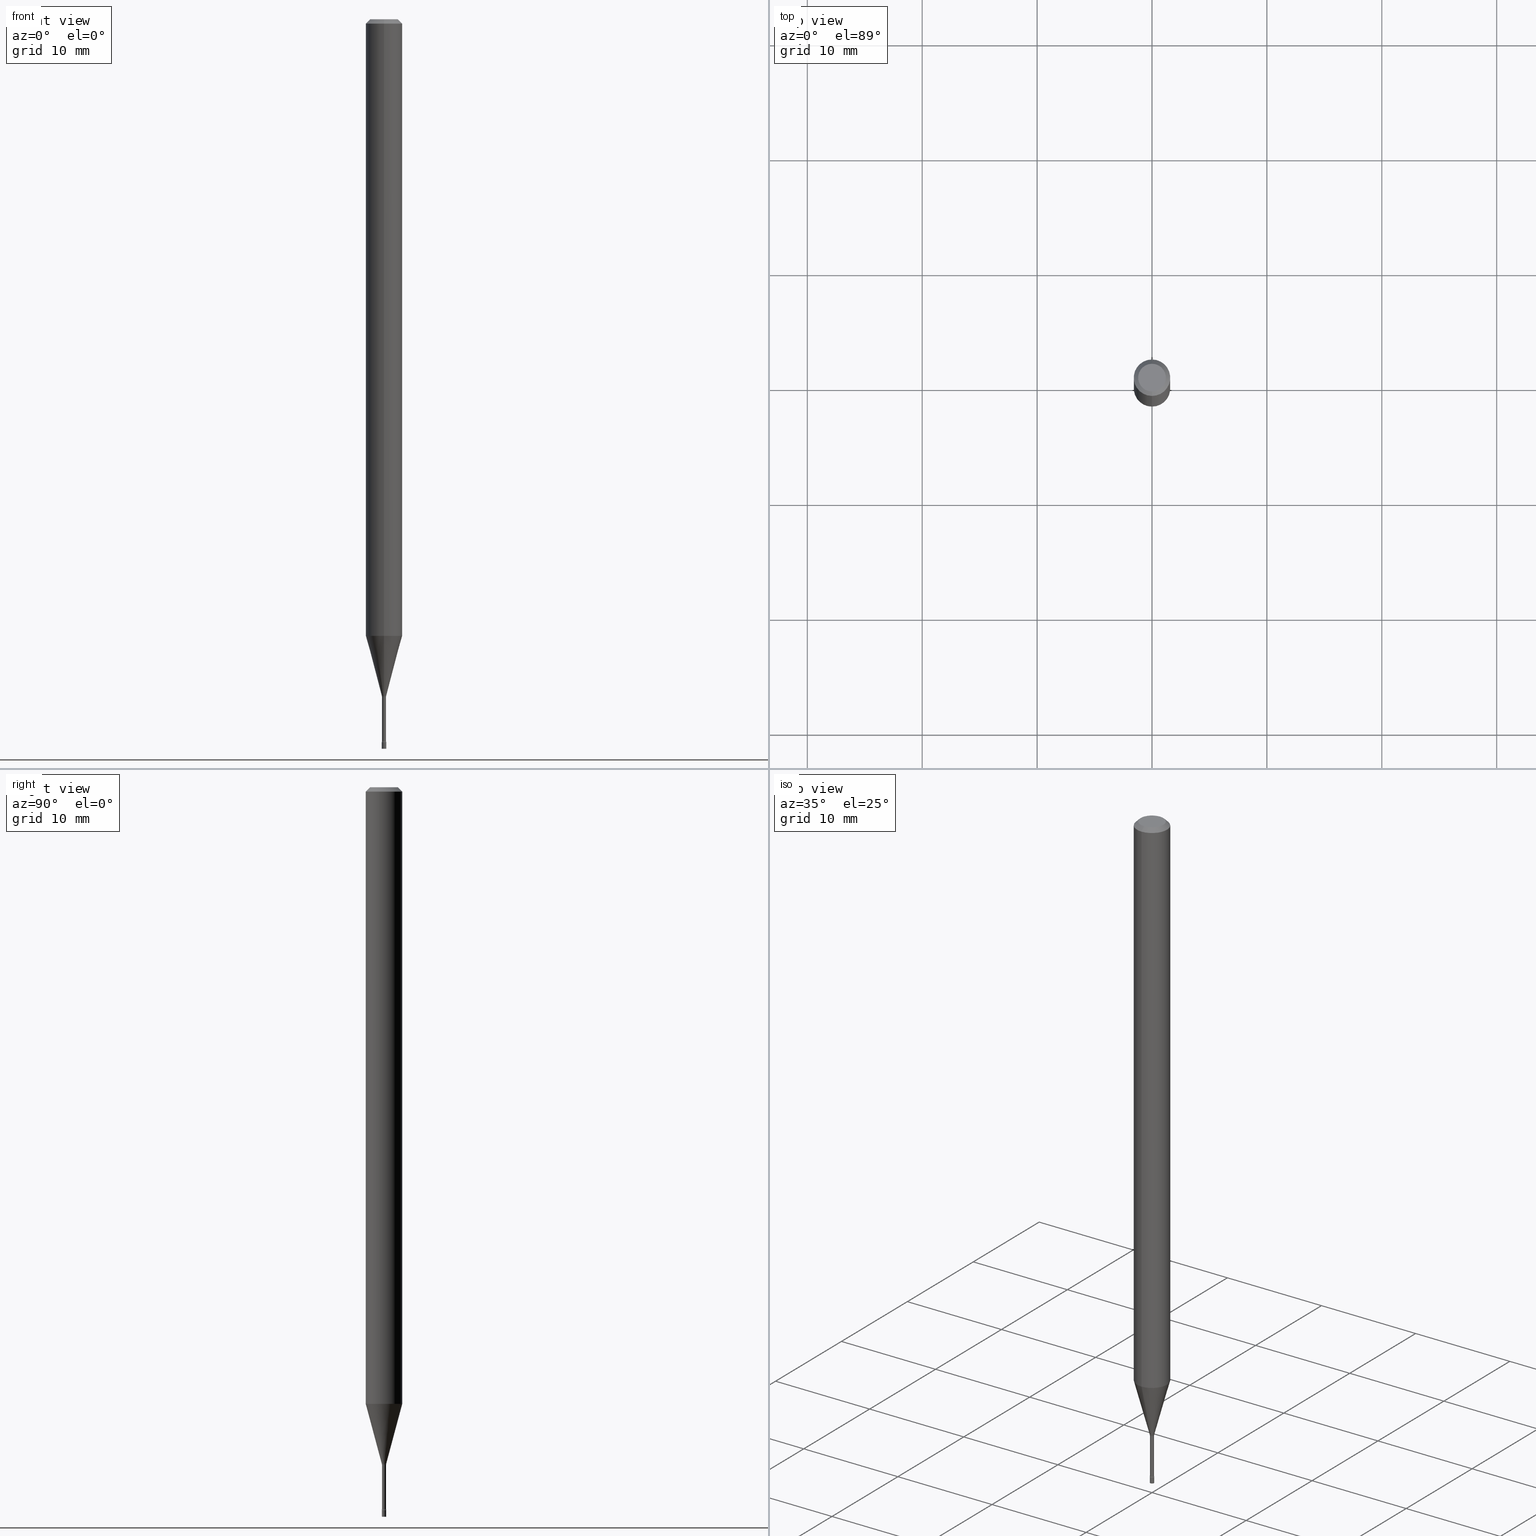
[diagram: canonical four-view strip — front | top / right | iso, engineering-drawing reading convention]
A machine part, canonical four-view strip (front | top / right | iso — engineering-drawing reading convention). The complete STEP part file that produces these views, byte-faithful:
ISO-10303-21;
HEADER;
FILE_DESCRIPTION (( 'STEP AP203' ),
    '1' );
FILE_NAME ('09602.STEP',
    '2024-03-08T23:51:49',
    ( '' ),
    ( '' ),
    'SwSTEP 2.0',
    'SolidWorks 2023',
    '' );
FILE_SCHEMA (( 'CONFIG_CONTROL_DESIGN' ));
ENDSEC;

DATA;
#1 = EDGE_CURVE ( 'NONE', #374, #506, #127, .T. ) ;
#2 = DIRECTION ( 'NONE',  ( -2.445435438683695197E-29, 3.491529123004369972E-15, 1.000000000000000000 ) ) ;
#3 = ORIENTED_EDGE ( 'NONE', *, *, #472, .F. ) ;
#4 = AXIS2_PLACEMENT_3D ( 'NONE', #58, #47, #250 ) ;
#5 = EDGE_LOOP ( 'NONE', ( #88, #42, #375, #151 ) ) ;
#6 = LOCAL_TIME ( 18, 51, 49.00000000000000000, #378 ) ;
#7 = FACE_OUTER_BOUND ( 'NONE', #61, .T. ) ;
#8 = DIRECTION ( 'NONE',  ( -2.445435438683695197E-29, 3.491529123004369972E-15, 1.000000000000000000 ) ) ;
#9 = CARTESIAN_POINT ( 'NONE',  ( 5.678239432994045133E-29, -8.107242593311779188E-15, -2.321974787463811030 ) ) ;
#10 = EDGE_LOOP ( 'NONE', ( #467, #192, #242, #78 ) ) ;
#11 = AXIS2_PLACEMENT_3D ( 'NONE', #402, #40, #123 ) ;
#12 = AXIS2_PLACEMENT_3D ( 'NONE', #134, #256, #304 ) ;
#13 = CALENDAR_DATE ( 2024, 8, 3 ) ;
#14 = PERSON_AND_ORGANIZATION ( #163, #341 ) ;
#15 = CYLINDRICAL_SURFACE ( 'NONE', #4, 0.007050000000000000711 ) ;
#16 = CARTESIAN_POINT ( 'NONE',  ( 6.048508650603792991E-29, -8.635667332170297409E-15, -2.473353426265656907 ) ) ;
#17 = ORIENTED_EDGE ( 'NONE', *, *, #167, .T. ) ;
#18 = APPROVAL_STATUS ( 'not_yet_approved' ) ;
#19 = CARTESIAN_POINT ( 'NONE',  ( 5.668745554017545725E-29, -8.093687479808324589E-15, -2.318092501787273108 ) ) ;
#20 = EDGE_CURVE ( 'NONE', #433, #145, #72, .T. ) ;
#21 = DIRECTION ( 'NONE',  ( -2.445468806185136877E-29, 3.491481338843145188E-15, 1.000000000000000000 ) ) ;
#22 = EDGE_CURVE ( 'NONE', #414, #226, #500, .T. ) ;
#23 = CARTESIAN_POINT ( 'NONE',  ( -4.922988687762769829E-17, -0.007050000000008637899, -2.473353426265656907 ) ) ;
#24 = AXIS2_PLACEMENT_3D ( 'NONE', #70, #473, #231 ) ;
#25 = ORIENTED_EDGE ( 'NONE', *, *, #167, .F. ) ;
#26 = ADVANCED_FACE ( 'NONE', ( #435 ), #416, .T. ) ;
#27 = CARTESIAN_POINT ( 'NONE',  ( -0.007499999999999999722, 5.329070518200751197E-17, -3.689201317691179266E-31 ) ) ;
#28 = EDGE_LOOP ( 'NONE', ( #471, #17, #101, #520 ) ) ;
#29 = DIRECTION ( 'NONE',  ( 6.982962677686265922E-15, 1.000000000000000000, -3.483106191921935554E-15 ) ) ;
#30 = AXIS2_PLACEMENT_3D ( 'NONE', #156, #318, #278 ) ;
#31 = CC_DESIGN_SECURITY_CLASSIFICATION ( #282, ( #502 ) ) ;
#32 = PLANE ( 'NONE',  #432 ) ;
#33 = ADVANCED_FACE ( 'NONE', ( #436 ), #67, .T. ) ;
#34 = PLANE ( 'NONE',  #191 ) ;
#35 = CIRCLE ( 'NONE', #365, 0.01500000000000002720 ) ;
#36 = ORIENTED_EDGE ( 'NONE', *, *, #266, .T. ) ;
#37 = APPROVAL_PERSON_ORGANIZATION ( #247, #362, #107 ) ;
#38 = LINE ( 'NONE', #243, #512 ) ;
#39 = EDGE_CURVE ( 'NONE', #165, #189, #357, .T. ) ;
#40 = DIRECTION ( 'NONE',  ( -2.445435438683695197E-29, 3.491529123004369972E-15, 1.000000000000000000 ) ) ;
#41 = ORIENTED_EDGE ( 'NONE', *, *, #368, .F. ) ;
#42 = ORIENTED_EDGE ( 'NONE', *, *, #267, .T. ) ;
#43 = LINE ( 'NONE', #363, #238 ) ;
#44 = AXIS2_PLACEMENT_3D ( 'NONE', #133, #293, #462 ) ;
#45 = CARTESIAN_POINT ( 'NONE',  ( 2.489070731061789820E-16, 0.007561112605655881391, -2.318092501787273108 ) ) ;
#46 = PERSON_AND_ORGANIZATION_ROLE ( 'design_owner' ) ;
#47 = DIRECTION ( 'NONE',  ( -2.445435438683695197E-29, 3.491529123004369972E-15, 1.000000000000000000 ) ) ;
#48 = ORIENTED_EDGE ( 'NONE', *, *, #184, .T. ) ;
#49 = DIRECTION ( 'NONE',  ( -2.445435438683695197E-29, 3.491529123004369972E-15, 1.000000000000000000 ) ) ;
#50 = COORDINATED_UNIVERSAL_TIME_OFFSET ( 5, 0, .BEHIND. ) ;
#51 = APPROVAL_ROLE ( '' ) ;
#52 = UNCERTAINTY_MEASURE_WITH_UNIT (LENGTH_MEASURE( 1.000000000000000082E-05 ), #298, 'distance_accuracy_value', 'NONE');
#53 = CARTESIAN_POINT ( 'NONE',  ( 6.048508650603792991E-29, -8.635667332170297409E-15, -2.473353426265656907 ) ) ;
#54 = CARTESIAN_POINT ( 'NONE',  ( 0.000000000000000000, 0.000000000000000000, 0.000000000000000000 ) ) ;
#55 = AXIS2_PLACEMENT_3D ( 'NONE', #154, #450, #85 ) ;
#56 = CIRCLE ( 'NONE', #399, 0.06250000000000000000 ) ;
#57 = APPROVAL_DATE_TIME ( #461, #362 ) ;
#58 = CARTESIAN_POINT ( 'NONE',  ( 0.000000000000000000, 0.000000000000000000, 0.000000000000000000 ) ) ;
#59 = DIRECTION ( 'NONE',  ( -6.982962677686265922E-15, -1.000000000000000000, 3.491529123004369972E-15 ) ) ;
#60 = DIRECTION ( 'NONE',  ( -2.445435438683695197E-29, 3.491529123004369972E-15, 1.000000000000000000 ) ) ;
#61 = EDGE_LOOP ( 'NONE', ( #510, #403, #48, #122 ) ) ;
#62 = DATE_AND_TIME ( #503, #465 ) ;
#63 = FACE_OUTER_BOUND ( 'NONE', #10, .T. ) ;
#64 = CLOSED_SHELL ( 'NONE', ( #240, #280, #404, #131, #377, #367, #26, #451, #312, #200, #65, #455, #485, #174 ) ) ;
#65 = ADVANCED_FACE ( 'NONE', ( #475 ), #32, .F. ) ;
#66 = CIRCLE ( 'NONE', #55, 0.007049999999999998976 ) ;
#67 = CYLINDRICAL_SURFACE ( 'NONE', #24, 0.007499999999999999722 ) ;
#68 = PRODUCT_DEFINITION ( 'UNKNOWN', '', #502, #207 ) ;
#69 = EDGE_LOOP ( 'NONE', ( #232, #279, #262, #445 ) ) ;
#70 = CARTESIAN_POINT ( 'NONE',  ( 0.000000000000000000, 0.000000000000000000, 0.000000000000000000 ) ) ;
#71 = CARTESIAN_POINT ( 'NONE',  ( 6.048426120979777500E-29, -8.635785519289182555E-15, -2.473353426265656907 ) ) ;
#72 = CIRCLE ( 'NONE', #439, 0.06250000000000000000 ) ;
#73 = CIRCLE ( 'NONE', #348, 0.007561112605663975611 ) ;
#74 = EDGE_CURVE ( 'NONE', #506, #374, #299, .T. ) ;
#75 = DIRECTION ( 'NONE',  ( -2.445435438683695197E-29, 3.491529123004369972E-15, 1.000000000000000000 ) ) ;
#76 = CC_DESIGN_PERSON_AND_ORGANIZATION_ASSIGNMENT ( #193, #290, ( #282 ) ) ;
#77 = ORIENTED_EDGE ( 'NONE', *, *, #1, .T. ) ;
#78 = ORIENTED_EDGE ( 'NONE', *, *, #116, .F. ) ;
#79 = CARTESIAN_POINT ( 'NONE',  ( 6.113672015462842613E-29, -8.728703347107864943E-15, -2.500000000000000000 ) ) ;
#80 = ORIENTED_EDGE ( 'NONE', *, *, #459, .F. ) ;
#81 = DIRECTION ( 'NONE',  ( 1.000000000000000000, -6.982962677686268288E-15, 0.000000000000000000 ) ) ;
#82 = ORIENTED_EDGE ( 'NONE', *, *, #266, .F. ) ;
#83 = DIRECTION ( 'NONE',  ( -2.445435438683695197E-29, 3.491529123004369972E-15, 1.000000000000000000 ) ) ;
#84 = APPROVAL ( #421, 'UNSPECIFIED' ) ;
#85 = DIRECTION ( 'NONE',  ( -6.982962677686265922E-15, -1.000000000000000000, 0.000000000000000000 ) ) ;
#86 = ORIENTED_EDGE ( 'NONE', *, *, #74, .T. ) ;
#87 = CARTESIAN_POINT ( 'NONE',  ( 6.057343581619512225E-29, -8.648517637681823363E-15, -2.476999999999999869 ) ) ;
#88 = ORIENTED_EDGE ( 'NONE', *, *, #190, .F. ) ;
#89 = DIRECTION ( 'NONE',  ( -6.982962677686266711E-15, -1.000000000000000000, 3.491529123004370367E-15 ) ) ;
#90 = CIRCLE ( 'NONE', #252, 0.007499999999999999722 ) ;
#91 = DIRECTION ( 'NONE',  ( 1.000000000000000000, -6.982962677686265922E-15, 4.876176775795935793E-29 ) ) ;
#92 = EDGE_LOOP ( 'NONE', ( #158, #393, #509, #41 ) ) ;
#93 = FACE_OUTER_BOUND ( 'NONE', #460, .T. ) ;
#94 = PERSON_AND_ORGANIZATION_ROLE ( 'creator' ) ;
#95 = DIRECTION ( 'NONE',  ( 7.105427357601000281E-15, 1.000000000000000000, 0.000000000000000000 ) ) ;
#96 = CARTESIAN_POINT ( 'NONE',  ( -4.287811248607203282E-16, -0.06250000000000005551, -0.01499999999999981209 ) ) ;
#97 = EDGE_CURVE ( 'NONE', #226, #479, #305, .T. ) ;
#98 = ORIENTED_EDGE ( 'NONE', *, *, #120, .T. ) ;
#99 = APPROVAL_DATE_TIME ( #292, #84 ) ;
#100 = CARTESIAN_POINT ( 'NONE',  ( 0.000000000000000000, 0.000000000000000000, 0.000000000000000000 ) ) ;
#101 = ORIENTED_EDGE ( 'NONE', *, *, #459, .T. ) ;
#102 = SHAPE_DEFINITION_REPRESENTATION ( #234, #398 ) ;
#103 = DIRECTION ( 'NONE',  ( -2.445435438683695197E-29, 3.491529123004369972E-15, 1.000000000000000000 ) ) ;
#104 = AXIS2_PLACEMENT_3D ( 'NONE', #236, #320, #356 ) ;
#105 = AXIS2_PLACEMENT_3D ( 'NONE', #217, #147, #434 ) ;
#106 = APPLICATION_PROTOCOL_DEFINITION ( 'international standard', 'config_control_design', 1994, #287 ) ;
#107 = APPROVAL_ROLE ( '' ) ;
#108 = DIRECTION ( 'NONE',  ( -2.438088387897960049E-29, 3.491481338843145188E-15, 1.000000000000000000 ) ) ;
#109 = EDGE_LOOP ( 'NONE', ( #119, #210, #345, #412 ) ) ;
#110 = APPROVAL_ROLE ( '' ) ;
#111 = ORIENTED_EDGE ( 'NONE', *, *, #190, .T. ) ;
#112 = VECTOR ( 'NONE', #380, 39.37007874015748143 ) ;
#113 = ORIENTED_EDGE ( 'NONE', *, *, #137, .T. ) ;
#114 = DIRECTION ( 'NONE',  ( -6.982962677686265133E-15, -1.000000000000000000, 0.000000000000000000 ) ) ;
#115 = CARTESIAN_POINT ( 'NONE',  ( 3.668153158025549838E-31, -5.237293684506565830E-17, -0.01500000000000003067 ) ) ;
#116 = EDGE_CURVE ( 'NONE', #374, #145, #118, .T. ) ;
#117 = AXIS2_PLACEMENT_3D ( 'NONE', #269, #224, #187 ) ;
#118 = LINE ( 'NONE', #394, #142 ) ;
#119 = ORIENTED_EDGE ( 'NONE', *, *, #410, .F. ) ;
#120 = EDGE_CURVE ( 'NONE', #395, #371, #150, .T. ) ;
#121 = CARTESIAN_POINT ( 'NONE',  ( 5.668745554017545725E-29, -8.093687479808324589E-15, -2.318092501787273108 ) ) ;
#122 = ORIENTED_EDGE ( 'NONE', *, *, #258, .T. ) ;
#123 = DIRECTION ( 'NONE',  ( -6.982962677686265922E-15, -1.000000000000000000, 3.491529123004369972E-15 ) ) ;
#124 = CC_DESIGN_PERSON_AND_ORGANIZATION_ASSIGNMENT ( #409, #46, ( #514 ) ) ;
#125 = CARTESIAN_POINT ( 'NONE',  ( 5.372493636224328291E-17, 0.007561112605655881391, -2.318092501787273108 ) ) ;
#126 = CARTESIAN_POINT ( 'NONE',  ( 3.316907271900976096E-16, 0.04749999999999999362, -1.803034539328130031E-16 ) ) ;
#127 = CIRCLE ( 'NONE', #355, 0.04749999999999999362 ) ;
#128 = TOROIDAL_SURFACE ( 'NONE', #11, 0.02205000000000000016, 0.01500000000000002720 ) ;
#129 = CARTESIAN_POINT ( 'NONE',  ( -0.007499999999999999722, -8.635260606529160038E-15, -2.476999999999999869 ) ) ;
#130 = FACE_OUTER_BOUND ( 'NONE', #109, .T. ) ;
#131 = ADVANCED_FACE ( 'NONE', ( #63 ), #490, .T. ) ;
#132 = DIRECTION ( 'NONE',  ( -6.982962677686265133E-15, -1.000000000000000000, 3.491529123004369972E-15 ) ) ;
#133 = CARTESIAN_POINT ( 'NONE',  ( 6.048426120979777500E-29, -8.635785519289182555E-15, -2.473353426265656907 ) ) ;
#134 = CARTESIAN_POINT ( 'NONE',  ( 5.167346385850627503E-29, -7.377802786958990502E-15, -2.113057782720306310 ) ) ;
#135 = FACE_OUTER_BOUND ( 'NONE', #69, .T. ) ;
#136 = APPROVAL_STATUS ( 'not_yet_approved' ) ;
#137 = EDGE_CURVE ( 'NONE', #371, #405, #153, .T. ) ;
#138 = DIRECTION ( 'NONE',  ( -2.445468806185136597E-29, 3.491481338843145583E-15, 1.000000000000000000 ) ) ;
#139 = DIRECTION ( 'NONE',  ( -6.982962677686265922E-15, -1.000000000000000000, 3.483106191921935554E-15 ) ) ;
#140 = AXIS2_PLACEMENT_3D ( 'NONE', #373, #260, #245 ) ;
#141 = DIRECTION ( 'NONE',  ( -2.445435438683695197E-29, 3.491529123004369972E-15, 1.000000000000000000 ) ) ;
#142 = VECTOR ( 'NONE', #396, 39.37007874015748143 ) ;
#143 = MECHANICAL_CONTEXT ( 'NONE', #287, 'mechanical' ) ;
#144 = ORIENTED_EDGE ( 'NONE', *, *, #446, .F. ) ;
#145 = VERTEX_POINT ( 'NONE', #444 ) ;
#146 = EDGE_LOOP ( 'NONE', ( #202, #111, #397, #294 ) ) ;
#147 = DIRECTION ( 'NONE',  ( -2.445468806185136597E-29, 3.491481338843145583E-15, 1.000000000000000000 ) ) ;
#148 = CIRCLE ( 'NONE', #448, 0.007049999999999998976 ) ;
#149 = AXIS2_PLACEMENT_3D ( 'NONE', #498, #141, #132 ) ;
#150 = LINE ( 'NONE', #27, #389 ) ;
#151 = ORIENTED_EDGE ( 'NONE', *, *, #336, .F. ) ;
#152 = DIRECTION ( 'NONE',  ( 1.000000000000000000, -7.105427357601001070E-15, 4.926316093729283310E-29 ) ) ;
#153 = CIRCLE ( 'NONE', #215, 0.007499999999999999722 ) ;
#154 = CARTESIAN_POINT ( 'NONE',  ( 5.678239432994045133E-29, -8.107242593311779188E-15, -2.321974787463811030 ) ) ;
#155 = ORIENTED_EDGE ( 'NONE', *, *, #229, .T. ) ;
#156 = CARTESIAN_POINT ( 'NONE',  ( -1.539743270429253881E-16, -0.02205000000000810478, -2.321974787463811030 ) ) ;
#157 = CARTESIAN_POINT ( 'NONE',  ( 5.169198402660787211E-17, 0.007049999999991365257, -2.473353426265656907 ) ) ;
#158 = ORIENTED_EDGE ( 'NONE', *, *, #358, .F. ) ;
#159 = CIRCLE ( 'NONE', #518, 0.007499999999999999722 ) ;
#160 = CC_DESIGN_APPROVAL ( #362, ( #502 ) ) ;
#161 = CARTESIAN_POINT ( 'NONE',  ( -5.237222008258650333E-17, -0.007500000000008657727, -2.476999999999999869 ) ) ;
#162 = EDGE_CURVE ( 'NONE', #165, #319, #38, .T. ) ;
#163 = PERSON ( 'UNSPECIFIED', 'UNSPECIFIED', 'UNSPECIFIED', ('UNSPECIFIED'), ('UNSPECIFIED'), ('UNSPECIFIED') ) ;
#164 = DIRECTION ( 'NONE',  ( -2.445435438683695197E-29, 3.491529123004369972E-15, 1.000000000000000000 ) ) ;
#165 = VERTEX_POINT ( 'NONE', #359 ) ;
#166 = CARTESIAN_POINT ( 'NONE',  ( -0.007499999999999999722, -8.635260606529160038E-15, -2.500000000000000000 ) ) ;
#167 = EDGE_CURVE ( 'NONE', #395, #484, #288, .T. ) ;
#168 = CIRCLE ( 'NONE', #332, 0.06250000000000000000 ) ;
#169 = DIRECTION ( 'NONE',  ( -2.445435438683695197E-29, 3.491529123004369972E-15, 1.000000000000000000 ) ) ;
#170 = AXIS2_PLACEMENT_3D ( 'NONE', #16, #458, #59 ) ;
#171 = LINE ( 'NONE', #496, #440 ) ;
#172 = SECURITY_CLASSIFICATION_LEVEL ( 'unclassified' ) ;
#173 = DIRECTION ( 'NONE',  ( -2.445435438683695197E-29, 3.491529123004369972E-15, 1.000000000000000000 ) ) ;
#174 = ADVANCED_FACE ( 'NONE', ( #7 ), #128, .F. ) ;
#175 = DIRECTION ( 'NONE',  ( 1.000000000000000000, 0.000000000000000000, 0.000000000000000000 ) ) ;
#176 = DIRECTION ( 'NONE',  ( -2.445435438683695197E-29, 3.491529123004369972E-15, 1.000000000000000000 ) ) ;
#177 = PERSON_AND_ORGANIZATION ( #163, #341 ) ;
#178 = CYLINDRICAL_SURFACE ( 'NONE', #470, 0.007499999999999999722 ) ;
#179 = FACE_OUTER_BOUND ( 'NONE', #92, .T. ) ;
#180 = MANIFOLD_SOLID_BREP ( 'Body-Move/Copy2[1]', #480 ) ;
#181 = MANIFOLD_SOLID_BREP ( 'Body-Move/Copy2[2]', #64 ) ;
#182 = FACE_OUTER_BOUND ( 'NONE', #283, .T. ) ;
#183 = CIRCLE ( 'NONE', #264, 0.01500000000000001506 ) ;
#184 = EDGE_CURVE ( 'NONE', #165, #350, #417, .T. ) ;
#185 = VERTEX_POINT ( 'NONE', #161 ) ;
#186 = LENGTH_MEASURE_WITH_UNIT ( LENGTH_MEASURE( 0.02539999999999999897 ), #301 );
#187 = DIRECTION ( 'NONE',  ( -6.982962677686266711E-15, -1.000000000000000000, 3.491529123004370367E-15 ) ) ;
#188 = DIRECTION ( 'NONE',  ( -6.982962677686265133E-15, -1.000000000000000000, 0.000000000000000000 ) ) ;
#189 = VERTEX_POINT ( 'NONE', #45 ) ;
#190 = EDGE_CURVE ( 'NONE', #189, #400, #276, .T. ) ;
#191 = AXIS2_PLACEMENT_3D ( 'NONE', #126, #208, #478 ) ;
#192 = ORIENTED_EDGE ( 'NONE', *, *, #472, .T. ) ;
#193 = PERSON_AND_ORGANIZATION ( #163, #341 ) ;
#194 = CARTESIAN_POINT ( 'NONE',  ( -1.539743270429218136E-16, -0.02205000000000865296, -2.473353426265656907 ) ) ;
#195 = ORIENTED_EDGE ( 'NONE', *, *, #477, .F. ) ;
#196 = TOROIDAL_SURFACE ( 'NONE', #104, 0.02205000000000000016, 0.01500000000000002720 ) ;
#197 = ORIENTED_EDGE ( 'NONE', *, *, #116, .T. ) ;
#198 = ORIENTED_EDGE ( 'NONE', *, *, #516, .F. ) ;
#199 = DIRECTION ( 'NONE',  ( -2.445468806185136597E-29, 3.491481338843145583E-15, 1.000000000000000000 ) ) ;
#200 = ADVANCED_FACE ( 'NONE', ( #452 ), #34, .F. ) ;
#201 = DIRECTION ( 'NONE',  ( 1.000000000000000000, -6.982962677686268288E-15, 0.000000000000000000 ) ) ;
#202 = ORIENTED_EDGE ( 'NONE', *, *, #39, .T. ) ;
#203 = CC_DESIGN_PERSON_AND_ORGANIZATION_ASSIGNMENT ( #177, #259, ( #502 ) ) ;
#204 = CONICAL_SURFACE ( 'NONE', #406, 0.007561112605663975611, 0.2617993877991499074 ) ;
#205 = CIRCLE ( 'NONE', #265, 0.007499999999999999722 ) ;
#206 = LOCAL_TIME ( 18, 51, 49.00000000000000000, #50 ) ;
#207 = DESIGN_CONTEXT ( 'detailed design', #370, 'design' ) ;
#208 = DIRECTION ( 'NONE',  ( 2.445435438683694917E-29, -3.491529123004369972E-15, -1.000000000000000000 ) ) ;
#209 = FACE_OUTER_BOUND ( 'NONE', #408, .T. ) ;
#210 = ORIENTED_EDGE ( 'NONE', *, *, #97, .T. ) ;
#211 = EDGE_CURVE ( 'NONE', #414, #350, #447, .T. ) ;
#212 = CALENDAR_DATE ( 2024, 8, 3 ) ;
#213 = DIRECTION ( 'NONE',  ( -2.445435438683695197E-29, 3.491529123004369972E-15, 1.000000000000000000 ) ) ;
#214 = ORIENTED_EDGE ( 'NONE', *, *, #446, .T. ) ;
#215 = AXIS2_PLACEMENT_3D ( 'NONE', #310, #437, #411 ) ;
#216 = DIRECTION ( 'NONE',  ( -6.982962677686265922E-15, -1.000000000000000000, 3.491529123004369972E-15 ) ) ;
#217 = CARTESIAN_POINT ( 'NONE',  ( 6.057426232920582713E-29, -8.648399276314471045E-15, -2.476999999999999869 ) ) ;
#218 = CARTESIAN_POINT ( 'NONE',  ( 0.000000000000000000, 0.000000000000000000, 0.000000000000000000 ) ) ;
#219 = DIRECTION ( 'NONE',  ( 2.438088387897960049E-29, -3.491481338843145188E-15, -1.000000000000000000 ) ) ;
#220 = CARTESIAN_POINT ( 'NONE',  ( 0.007499999999999999722, -5.237222008264700526E-17, 3.657132581846952195E-31 ) ) ;
#221 = DIRECTION ( 'NONE',  ( -6.982962677686265922E-15, -1.000000000000000000, 4.370956789862821150E-15 ) ) ;
#222 = EDGE_LOOP ( 'NONE', ( #360, #443, #317, #268 ) ) ;
#223 = AXIS2_PLACEMENT_3D ( 'NONE', #248, #219, #331 ) ;
#224 = DIRECTION ( 'NONE',  ( -2.445435438683695197E-29, 3.491529123004369972E-15, 1.000000000000000000 ) ) ;
#225 = DIMENSIONAL_EXPONENTS ( 1.000000000000000000, 0.000000000000000000, 0.000000000000000000, 0.000000000000000000, 0.000000000000000000, 0.000000000000000000, 0.000000000000000000 ) ;
#226 = VERTEX_POINT ( 'NONE', #157 ) ;
#227 = CARTESIAN_POINT ( 'NONE',  ( 5.237222008270756882E-17, 0.007499999999991352126, -2.476999999999999869 ) ) ;
#228 = ORIENTED_EDGE ( 'NONE', *, *, #516, .T. ) ;
#229 = EDGE_CURVE ( 'NONE', #484, #395, #90, .T. ) ;
#230 = ORIENTED_EDGE ( 'NONE', *, *, #297, .T. ) ;
#231 = DIRECTION ( 'NONE',  ( 1.000000000000000000, -6.982962677686267499E-15, 4.876176775795936353E-29 ) ) ;
#232 = ORIENTED_EDGE ( 'NONE', *, *, #97, .F. ) ;
#233 = AXIS2_PLACEMENT_3D ( 'NONE', #442, #108, #91 ) ;
#234 = PRODUCT_DEFINITION_SHAPE ( 'NONE', 'NONE',  #68 ) ;
#235 = DIRECTION ( 'NONE',  ( -2.445468806185136597E-29, 3.491481338843145583E-15, 1.000000000000000000 ) ) ;
#236 = CARTESIAN_POINT ( 'NONE',  ( 5.678316911491112973E-29, -8.107131639694176138E-15, -2.321974787463811030 ) ) ;
#237 = EDGE_LOOP ( 'NONE', ( #155, #98, #327, #80 ) ) ;
#238 = VECTOR ( 'NONE', #366, 39.37007874015748143 ) ;
#239 = LOCAL_TIME ( 18, 51, 49.00000000000000000, #508 ) ;
#240 = ADVANCED_FACE ( 'NONE', ( #361 ), #196, .F. ) ;
#241 = CARTESIAN_POINT ( 'NONE',  ( -4.922988687768817558E-17, -0.007050000000000000711, 2.461528031718081016E-17 ) ) ;
#242 = ORIENTED_EDGE ( 'NONE', *, *, #20, .T. ) ;
#243 = CARTESIAN_POINT ( 'NONE',  ( -5.279896712707800376E-17, -0.007561112605672069831, -2.318092501787273108 ) ) ;
#244 = AXIS2_PLACEMENT_3D ( 'NONE', #270, #311, #114 ) ;
#245 = DIRECTION ( 'NONE',  ( 6.982962677686265922E-15, 1.000000000000000000, -3.483106191921935554E-15 ) ) ;
#246 = EDGE_CURVE ( 'NONE', #479, #185, #159, .T. ) ;
#247 = PERSON_AND_ORGANIZATION ( #163, #341 ) ;
#248 = CARTESIAN_POINT ( 'NONE',  ( 5.237222008270812965E-17, 0.007499999999991270594, -2.500000000000000000 ) ) ;
#249 = DATE_AND_TIME ( #212, #519 ) ;
#250 = DIRECTION ( 'NONE',  ( -6.982962677686265133E-15, -1.000000000000000000, 3.491529123004369972E-15 ) ) ;
#251 = DIRECTION ( 'NONE',  ( -6.982962677686265922E-15, -1.000000000000000000, 0.000000000000000000 ) ) ;
#252 = AXIS2_PLACEMENT_3D ( 'NONE', #79, #199, #81 ) ;
#253 = APPLICATION_PROTOCOL_DEFINITION ( 'international standard', 'config_control_design', 1994, #370 ) ;
#254 = CARTESIAN_POINT ( 'NONE',  ( -4.364351673553912750E-16, -0.06250000000000005551, -0.01499999999999981209 ) ) ;
#255 = CC_DESIGN_APPROVAL ( #313, ( #282 ) ) ;
#256 = DIRECTION ( 'NONE',  ( -2.445435438683695197E-29, 3.491529123004369972E-15, 1.000000000000000000 ) ) ;
#257 = CARTESIAN_POINT ( 'NONE',  ( 5.329070518206812484E-17, 0.007499999999991359932, -2.476999999999999869 ) ) ;
#258 = EDGE_CURVE ( 'NONE', #350, #277, #66, .T. ) ;
#259 = PERSON_AND_ORGANIZATION_ROLE ( 'creator' ) ;
#260 = DIRECTION ( 'NONE',  ( 2.445435438683695197E-29, -3.491529123004369972E-15, -1.000000000000000000 ) ) ;
#261 = EDGE_CURVE ( 'NONE', #414, #185, #183, .T. ) ;
#262 = ORIENTED_EDGE ( 'NONE', *, *, #261, .T. ) ;
#263 = ORIENTED_EDGE ( 'NONE', *, *, #246, .F. ) ;
#264 = AXIS2_PLACEMENT_3D ( 'NONE', #194, #413, #316 ) ;
#265 = AXIS2_PLACEMENT_3D ( 'NONE', #463, #103, #251 ) ;
#266 = EDGE_CURVE ( 'NONE', #319, #433, #43, .T. ) ;
#267 = EDGE_CURVE ( 'NONE', #189, #165, #73, .T. ) ;
#268 = ORIENTED_EDGE ( 'NONE', *, *, #211, .F. ) ;
#269 = CARTESIAN_POINT ( 'NONE',  ( 7.070155193259450617E-46, -1.009458371745586269E-31, -2.891164118021084832E-17 ) ) ;
#270 = CARTESIAN_POINT ( 'NONE',  ( 5.668745554017545725E-29, -8.093687479808324589E-15, -2.318092501787273108 ) ) ;
#271 = CIRCLE ( 'NONE', #44, 0.007050000000000001578 ) ;
#272 =( GEOMETRIC_REPRESENTATION_CONTEXT ( 3 ) GLOBAL_UNCERTAINTY_ASSIGNED_CONTEXT ( ( #52 ) ) GLOBAL_UNIT_ASSIGNED_CONTEXT ( ( #298, #425, #469 ) ) REPRESENTATION_CONTEXT ( 'NONE', 'WORKASPACE' ) );
#273 = ORIENTED_EDGE ( 'NONE', *, *, #20, .F. ) ;
#274 = ADVANCED_FACE ( 'NONE', ( #486 ), #326, .T. ) ;
#275 = EDGE_LOOP ( 'NONE', ( #468, #113 ) ) ;
#276 = LINE ( 'NONE', #125, #453 ) ;
#277 = VERTEX_POINT ( 'NONE', #505 ) ;
#278 = DIRECTION ( 'NONE',  ( -6.982962677686267499E-15, -1.000000000000000000, 0.000000000000000000 ) ) ;
#279 = ORIENTED_EDGE ( 'NONE', *, *, #22, .F. ) ;
#280 = ADVANCED_FACE ( 'NONE', ( #489 ), #15, .T. ) ;
#281 = VECTOR ( 'NONE', #83, 39.37007874015748143 ) ;
#282 = SECURITY_CLASSIFICATION ( '', '', #172 ) ;
#283 = EDGE_LOOP ( 'NONE', ( #144, #353, #36, #198 ) ) ;
#284 = CC_DESIGN_PERSON_AND_ORGANIZATION_ASSIGNMENT ( #386, #347, ( #502 ) ) ;
#285 = DIRECTION ( 'NONE',  ( 1.839019923739597554E-15, 0.2588190451025245697, 0.9659258262890670910 ) ) ;
#286 = CARTESIAN_POINT ( 'NONE',  ( 3.840629472727447874E-16, 0.04749999999999999362, -1.947592745229183872E-16 ) ) ;
#287 = APPLICATION_CONTEXT ( 'configuration controlled 3d designs of mechanical parts and assemblies' ) ;
#288 = CIRCLE ( 'NONE', #323, 0.007499999999999999722 ) ;
#289 = FACE_OUTER_BOUND ( 'NONE', #309, .T. ) ;
#290 = PERSON_AND_ORGANIZATION_ROLE ( 'classification_officer' ) ;
#291 = PLANE ( 'NONE',  #223 ) ;
#292 = DATE_AND_TIME ( #456, #6 ) ;
#293 = DIRECTION ( 'NONE',  ( -2.445435438683695197E-29, 3.491529123004369972E-15, 1.000000000000000000 ) ) ;
#294 = ORIENTED_EDGE ( 'NONE', *, *, #162, .F. ) ;
#295 = DATE_AND_TIME ( #392, #239 ) ;
#296 = LINE ( 'NONE', #220, #315 ) ;
#297 = EDGE_CURVE ( 'NONE', #189, #277, #35, .T. ) ;
#298 =( CONVERSION_BASED_UNIT ( 'INCH', #186 ) LENGTH_UNIT ( ) NAMED_UNIT ( #225 ) );
#299 = CIRCLE ( 'NONE', #117, 0.04749999999999999362 ) ;
#300 = DIRECTION ( 'NONE',  ( -2.445435438683695197E-29, 3.491529123004369972E-15, 1.000000000000000000 ) ) ;
#301 =( LENGTH_UNIT ( ) NAMED_UNIT ( * ) SI_UNIT ( $, .METRE. ) );
#302 = PERSON_AND_ORGANIZATION ( #163, #341 ) ;
#303 = ORIENTED_EDGE ( 'NONE', *, *, #368, .T. ) ;
#304 = DIRECTION ( 'NONE',  ( -6.982962677686265922E-15, -1.000000000000000000, 4.370956789862821150E-15 ) ) ;
#305 = CIRCLE ( 'NONE', #464, 0.01500000000000001506 ) ;
#306 = CC_DESIGN_APPROVAL ( #84, ( #68 ) ) ;
#307 = CARTESIAN_POINT ( 'NONE',  ( 1.566746732351626618E-16, 0.02204999999999138205, -2.473353426265656907 ) ) ;
#308 = CC_DESIGN_DATE_AND_TIME_ASSIGNMENT ( #62, #388, ( #282 ) ) ;
#309 = EDGE_LOOP ( 'NONE', ( #401, #214, #273, #82 ) ) ;
#310 = CARTESIAN_POINT ( 'NONE',  ( 6.057426232920582713E-29, -8.648399276314471045E-15, -2.476999999999999869 ) ) ;
#311 = DIRECTION ( 'NONE',  ( -2.445435438683695197E-29, 3.491529123004369972E-15, 1.000000000000000000 ) ) ;
#312 = ADVANCED_FACE ( 'NONE', ( #209 ), #376, .T. ) ;
#313 = APPROVAL ( #136, 'UNSPECIFIED' ) ;
#314 = AXIS2_PLACEMENT_3D ( 'NONE', #115, #507, #29 ) ;
#315 = VECTOR ( 'NONE', #21, 39.37007874015748143 ) ;
#316 = DIRECTION ( 'NONE',  ( -6.982962677686265133E-15, -1.000000000000000000, 0.000000000000000000 ) ) ;
#317 = ORIENTED_EDGE ( 'NONE', *, *, #258, .F. ) ;
#318 = DIRECTION ( 'NONE',  ( -1.000000000000000000, 6.982962677686265922E-15, -4.883557194083112340E-29 ) ) ;
#319 = VERTEX_POINT ( 'NONE', #342 ) ;
#320 = DIRECTION ( 'NONE',  ( -2.445435438683695197E-29, 3.491529123004369972E-15, 1.000000000000000000 ) ) ;
#321 = ORIENTED_EDGE ( 'NONE', *, *, #1, .F. ) ;
#322 = CC_DESIGN_PERSON_AND_ORGANIZATION_ASSIGNMENT ( #14, #94, ( #68 ) ) ;
#323 = AXIS2_PLACEMENT_3D ( 'NONE', #415, #235, #201 ) ;
#324 = DIRECTION ( 'NONE',  ( -6.982962677686265133E-15, -1.000000000000000000, 0.000000000000000000 ) ) ;
#325 = EDGE_LOOP ( 'NONE', ( #77, #86 ) ) ;
#326 = PLANE ( 'NONE',  #233 ) ;
#327 = ORIENTED_EDGE ( 'NONE', *, *, #488, .F. ) ;
#328 = ADVANCED_FACE ( 'NONE', ( #93 ), #291, .T. ) ;
#329 = CARTESIAN_POINT ( 'NONE',  ( 3.668153158025549838E-31, -5.237293684506565830E-17, -0.01500000000000003067 ) ) ;
#330 = CC_DESIGN_DATE_AND_TIME_ASSIGNMENT ( #249, #333, ( #68 ) ) ;
#331 = DIRECTION ( 'NONE',  ( -1.000000000000000000, 6.982962677686265922E-15, -4.876176775795935793E-29 ) ) ;
#332 = AXIS2_PLACEMENT_3D ( 'NONE', #387, #213, #221 ) ;
#333 = DATE_TIME_ROLE ( 'creation_date' ) ;
#334 = CARTESIAN_POINT ( 'NONE',  ( 0.000000000000000000, 0.000000000000000000, 0.000000000000000000 ) ) ;
#335 = FACE_OUTER_BOUND ( 'NONE', #28, .T. ) ;
#336 = EDGE_CURVE ( 'NONE', #400, #319, #168, .T. ) ;
#337 = DIRECTION ( 'NONE',  ( -6.982962677686265922E-15, -1.000000000000000000, 3.491529123004369972E-15 ) ) ;
#338 = DIRECTION ( 'NONE',  ( -6.982962677686265133E-15, -1.000000000000000000, 0.000000000000000000 ) ) ;
#339 = CYLINDRICAL_SURFACE ( 'NONE', #149, 0.007050000000000000711 ) ;
#340 = VECTOR ( 'NONE', #60, 39.37007874015748143 ) ;
#341 = ORGANIZATION ( 'UNSPECIFIED', 'UNSPECIFIED', '' ) ;
#342 = CARTESIAN_POINT ( 'NONE',  ( -4.364351673553400483E-16, -0.06250000000000739686, -2.113057782720305866 ) ) ;
#343 = EDGE_LOOP ( 'NONE', ( #195, #263 ) ) ;
#344 = DIRECTION ( 'NONE',  ( 7.105427357601001859E-15, 1.000000000000000000, 0.000000000000000000 ) ) ;
#345 = ORIENTED_EDGE ( 'NONE', *, *, #246, .T. ) ;
#346 = DIRECTION ( 'NONE',  ( -2.445435438683694917E-29, 3.491529123004369972E-15, 1.000000000000000000 ) ) ;
#347 = PERSON_AND_ORGANIZATION_ROLE ( 'design_supplier' ) ;
#348 = AXIS2_PLACEMENT_3D ( 'NONE', #121, #164, #324 ) ;
#349 = CIRCLE ( 'NONE', #105, 0.007499999999999999722 ) ;
#350 = VERTEX_POINT ( 'NONE', #457 ) ;
#351 = CARTESIAN_POINT ( 'NONE',  ( 5.668745554017545725E-29, -8.093687479808324589E-15, -2.318092501787273108 ) ) ;
#352 = ADVANCED_FACE ( 'NONE', ( #335 ), #178, .T. ) ;
#353 = ORIENTED_EDGE ( 'NONE', *, *, #336, .T. ) ;
#354 = DIRECTION ( 'NONE',  ( -2.445435438683695197E-29, 3.491529123004369972E-15, 1.000000000000000000 ) ) ;
#355 = AXIS2_PLACEMENT_3D ( 'NONE', #487, #176, #89 ) ;
#356 = DIRECTION ( 'NONE',  ( -6.982962677686265922E-15, -1.000000000000000000, 3.491529123004369972E-15 ) ) ;
#357 = CIRCLE ( 'NONE', #482, 0.007561112605663975611 ) ;
#358 = EDGE_CURVE ( 'NONE', #226, #277, #171, .T. ) ;
#359 = CARTESIAN_POINT ( 'NONE',  ( -5.279896712707800376E-17, -0.007561112605672069831, -2.318092501787273108 ) ) ;
#360 = ORIENTED_EDGE ( 'NONE', *, *, #22, .T. ) ;
#361 = FACE_OUTER_BOUND ( 'NONE', #430, .T. ) ;
#362 = APPROVAL ( #18, 'UNSPECIFIED' ) ;
#363 = CARTESIAN_POINT ( 'NONE',  ( -4.364351673553916201E-16, -0.06250000000000000000, 2.182205701877731233E-16 ) ) ;
#364 = AXIS2_PLACEMENT_3D ( 'NONE', #71, #354, #515 ) ;
#365 = AXIS2_PLACEMENT_3D ( 'NONE', #369, #419, #95 ) ;
#366 = DIRECTION ( 'NONE',  ( -2.445435438683695197E-29, 3.491529123004369972E-15, 1.000000000000000000 ) ) ;
#367 = ADVANCED_FACE ( 'NONE', ( #426 ), #204, .T. ) ;
#368 = EDGE_CURVE ( 'NONE', #277, #350, #148, .T. ) ;
#369 = CARTESIAN_POINT ( 'NONE',  ( 1.566746732351588408E-16, 0.02204999999999189206, -2.321974787463811030 ) ) ;
#370 = APPLICATION_CONTEXT ( 'configuration controlled 3d designs of mechanical parts and assemblies' ) ;
#371 = VERTEX_POINT ( 'NONE', #129 ) ;
#372 = COORDINATED_UNIVERSAL_TIME_OFFSET ( 5, 0, .BEHIND. ) ;
#373 = CARTESIAN_POINT ( 'NONE',  ( 3.668153158025549838E-31, -5.237293684506565830E-17, -0.01500000000000003067 ) ) ;
#374 = VERTEX_POINT ( 'NONE', #286 ) ;
#375 = ORIENTED_EDGE ( 'NONE', *, *, #162, .T. ) ;
#376 = CONICAL_SURFACE ( 'NONE', #140, 0.06250000000000000000, 0.7853981633974483900 ) ;
#377 = ADVANCED_FACE ( 'NONE', ( #289 ), #454, .T. ) ;
#378 = COORDINATED_UNIVERSAL_TIME_OFFSET ( 5, 0, .BEHIND. ) ;
#379 = CARTESIAN_POINT ( 'NONE',  ( 4.440892098501141880E-16, 0.06249999999999262396, -2.113057782720306310 ) ) ;
#380 = DIRECTION ( 'NONE',  ( -4.851104656540964275E-15, -0.7071067811865500152, -0.7071067811865450192 ) ) ;
#381 = DIRECTION ( 'NONE',  ( 0.000000000000000000, 0.000000000000000000, 1.000000000000000000 ) ) ;
#382 = DIRECTION ( 'NONE',  ( 1.000000000000000000, -6.982962677686267499E-15, 4.876176775795936353E-29 ) ) ;
#383 = CARTESIAN_POINT ( 'NONE',  ( -3.773273898774340269E-16, -0.04749999999999999362, 1.369359921624967276E-16 ) ) ;
#384 = LINE ( 'NONE', #96, #112 ) ;
#385 = COORDINATED_UNIVERSAL_TIME_OFFSET ( 5, 0, .BEHIND. ) ;
#386 = PERSON_AND_ORGANIZATION ( #163, #341 ) ;
#387 = CARTESIAN_POINT ( 'NONE',  ( 5.167346385850627503E-29, -7.377802786958990502E-15, -2.113057782720306310 ) ) ;
#388 = DATE_TIME_ROLE ( 'classification_date' ) ;
#389 = VECTOR ( 'NONE', #511, 39.37007874015748143 ) ;
#390 = DIRECTION ( 'NONE',  ( -2.445435438683695197E-29, 3.491529123004369972E-15, 1.000000000000000000 ) ) ;
#391 = DIRECTION ( 'NONE',  ( -6.982962677686265922E-15, -1.000000000000000000, 3.483106191921935554E-15 ) ) ;
#392 = CALENDAR_DATE ( 2024, 8, 3 ) ;
#393 = ORIENTED_EDGE ( 'NONE', *, *, #410, .T. ) ;
#394 = CARTESIAN_POINT ( 'NONE',  ( 4.364351673553919652E-16, 0.06249999999999995143, -0.01500000000000024751 ) ) ;
#395 = VERTEX_POINT ( 'NONE', #166 ) ;
#396 = DIRECTION ( 'NONE',  ( 4.937700262164548042E-15, 0.7071067811865451302, -0.7071067811865499042 ) ) ;
#397 = ORIENTED_EDGE ( 'NONE', *, *, #517, .F. ) ;
#398 = ADVANCED_BREP_SHAPE_REPRESENTATION ( '09602', ( #180, #181, #424 ), #272 ) ;
#399 = AXIS2_PLACEMENT_3D ( 'NONE', #497, #390, #139 ) ;
#400 = VERTEX_POINT ( 'NONE', #379 ) ;
#401 = ORIENTED_EDGE ( 'NONE', *, *, #517, .T. ) ;
#402 = CARTESIAN_POINT ( 'NONE',  ( 5.678316911491112973E-29, -8.107131639694176138E-15, -2.321974787463811030 ) ) ;
#403 = ORIENTED_EDGE ( 'NONE', *, *, #39, .F. ) ;
#404 = ADVANCED_FACE ( 'NONE', ( #130 ), #474, .F. ) ;
#405 = VERTEX_POINT ( 'NONE', #422 ) ;
#406 = AXIS2_PLACEMENT_3D ( 'NONE', #19, #169, #338 ) ;
#407 = AXIS2_PLACEMENT_3D ( 'NONE', #54, #173, #337 ) ;
#408 = EDGE_LOOP ( 'NONE', ( #3, #321, #197, #228 ) ) ;
#409 = PERSON_AND_ORGANIZATION ( #163, #341 ) ;
#410 = EDGE_CURVE ( 'NONE', #226, #414, #271, .T. ) ;
#411 = DIRECTION ( 'NONE',  ( 1.000000000000000000, -6.982962677686268288E-15, 0.000000000000000000 ) ) ;
#412 = ORIENTED_EDGE ( 'NONE', *, *, #261, .F. ) ;
#413 = DIRECTION ( 'NONE',  ( -1.000000000000000000, 6.982962677686265922E-15, -4.883557194083112340E-29 ) ) ;
#414 = VERTEX_POINT ( 'NONE', #23 ) ;
#415 = CARTESIAN_POINT ( 'NONE',  ( 6.113672015462842613E-29, -8.728703347107864943E-15, -2.500000000000000000 ) ) ;
#416 = CONICAL_SURFACE ( 'NONE', #244, 0.007561112605663975611, 0.2617993877991499074 ) ;
#417 = CIRCLE ( 'NONE', #30, 0.01500000000000002720 ) ;
#418 = DIRECTION ( 'NONE',  ( -6.982962677686265922E-15, -1.000000000000000000, 3.491529123004369972E-15 ) ) ;
#419 = DIRECTION ( 'NONE',  ( 1.000000000000000000, -7.105427357601001070E-15, 4.926316093729283310E-29 ) ) ;
#420 = ORIENTED_EDGE ( 'NONE', *, *, #229, .F. ) ;
#421 = APPROVAL_STATUS ( 'not_yet_approved' ) ;
#422 = CARTESIAN_POINT ( 'NONE',  ( 0.007499999999999999722, -8.700771496397117730E-15, -2.476999999999999869 ) ) ;
#423 = AXIS2_PLACEMENT_3D ( 'NONE', #53, #494, #216 ) ;
#424 = AXIS2_PLACEMENT_3D ( 'NONE', #218, #381, #175 ) ;
#425 =( NAMED_UNIT ( * ) PLANE_ANGLE_UNIT ( ) SI_UNIT ( $, .RADIAN. ) );
#426 = FACE_OUTER_BOUND ( 'NONE', #146, .T. ) ;
#427 = APPROVAL_DATE_TIME ( #295, #313 ) ;
#428 = CARTESIAN_POINT ( 'NONE',  ( 0.007499999999999999722, -8.781075567190511627E-15, -2.500000000000000000 ) ) ;
#429 = CARTESIAN_POINT ( 'NONE',  ( 4.440892098500625669E-16, 0.06250000000000000000, -2.182205701877731233E-16 ) ) ;
#430 = EDGE_LOOP ( 'NONE', ( #438, #230, #303, #499 ) ) ;
#431 = DIRECTION ( 'NONE',  ( -2.445435438683695197E-29, 3.491529123004369972E-15, 1.000000000000000000 ) ) ;
#432 = AXIS2_PLACEMENT_3D ( 'NONE', #227, #346, #441 ) ;
#433 = VERTEX_POINT ( 'NONE', #254 ) ;
#434 = DIRECTION ( 'NONE',  ( 1.000000000000000000, -6.982962677686268288E-15, 0.000000000000000000 ) ) ;
#435 = FACE_OUTER_BOUND ( 'NONE', #5, .T. ) ;
#436 = FACE_OUTER_BOUND ( 'NONE', #237, .T. ) ;
#437 = DIRECTION ( 'NONE',  ( -2.445468806185136597E-29, 3.491481338843145583E-15, 1.000000000000000000 ) ) ;
#438 = ORIENTED_EDGE ( 'NONE', *, *, #267, .F. ) ;
#439 = AXIS2_PLACEMENT_3D ( 'NONE', #329, #431, #391 ) ;
#440 = VECTOR ( 'NONE', #49, 39.37007874015748143 ) ;
#441 = DIRECTION ( 'NONE',  ( -6.982962677686265922E-15, -1.000000000000000000, 3.491529123004369972E-15 ) ) ;
#442 = CARTESIAN_POINT ( 'NONE',  ( 6.057426232920582713E-29, -8.648399276314471045E-15, -2.476999999999999869 ) ) ;
#443 = ORIENTED_EDGE ( 'NONE', *, *, #358, .T. ) ;
#444 = CARTESIAN_POINT ( 'NONE',  ( 4.440892098501145824E-16, 0.06249999999999995143, -0.01500000000000024751 ) ) ;
#445 = ORIENTED_EDGE ( 'NONE', *, *, #477, .T. ) ;
#446 = EDGE_CURVE ( 'NONE', #400, #145, #466, .T. ) ;
#447 = LINE ( 'NONE', #241, #281 ) ;
#448 = AXIS2_PLACEMENT_3D ( 'NONE', #9, #300, #492 ) ;
#449 = APPROVAL_PERSON_ORGANIZATION ( #493, #84, #51 ) ;
#450 = DIRECTION ( 'NONE',  ( -2.445435438683695197E-29, 3.491529123004369972E-15, 1.000000000000000000 ) ) ;
#451 = ADVANCED_FACE ( 'NONE', ( #182 ), #495, .T. ) ;
#452 = FACE_OUTER_BOUND ( 'NONE', #325, .T. ) ;
#453 = VECTOR ( 'NONE', #285, 39.37007874015748854 ) ;
#454 = CYLINDRICAL_SURFACE ( 'NONE', #501, 0.06250000000000000000 ) ;
#455 = ADVANCED_FACE ( 'NONE', ( #135 ), #491, .F. ) ;
#456 = CALENDAR_DATE ( 2024, 8, 3 ) ;
#457 = CARTESIAN_POINT ( 'NONE',  ( -4.922988687763138375E-17, -0.007050000000008106206, -2.321974787463811030 ) ) ;
#458 = DIRECTION ( 'NONE',  ( -2.445435438683695197E-29, 3.491529123004369972E-15, 1.000000000000000000 ) ) ;
#459 = EDGE_CURVE ( 'NONE', #484, #405, #296, .T. ) ;
#460 = EDGE_LOOP ( 'NONE', ( #420, #25 ) ) ;
#461 = DATE_AND_TIME ( #13, #206 ) ;
#462 = DIRECTION ( 'NONE',  ( -6.982962677686265133E-15, -1.000000000000000000, 0.000000000000000000 ) ) ;
#463 = CARTESIAN_POINT ( 'NONE',  ( 6.057343581619512225E-29, -8.648517637681823363E-15, -2.476999999999999869 ) ) ;
#464 = AXIS2_PLACEMENT_3D ( 'NONE', #307, #152, #344 ) ;
#465 = LOCAL_TIME ( 18, 51, 49.00000000000000000, #385 ) ;
#466 = LINE ( 'NONE', #429, #340 ) ;
#467 = ORIENTED_EDGE ( 'NONE', *, *, #74, .F. ) ;
#468 = ORIENTED_EDGE ( 'NONE', *, *, #488, .T. ) ;
#469 =( NAMED_UNIT ( * ) SI_UNIT ( $, .STERADIAN. ) SOLID_ANGLE_UNIT ( ) );
#470 = AXIS2_PLACEMENT_3D ( 'NONE', #100, #138, #382 ) ;
#471 = ORIENTED_EDGE ( 'NONE', *, *, #120, .F. ) ;
#472 = EDGE_CURVE ( 'NONE', #506, #433, #384, .T. ) ;
#473 = DIRECTION ( 'NONE',  ( -2.445468806185136597E-29, 3.491481338843145583E-15, 1.000000000000000000 ) ) ;
#474 = TOROIDAL_SURFACE ( 'NONE', #423, 0.02205000000000001750, 0.01500000000000001506 ) ;
#475 = FACE_OUTER_BOUND ( 'NONE', #343, .T. ) ;
#476 = DIRECTION ( 'NONE',  ( -1.807323732225327773E-15, -0.2588190451025178529, 0.9659258262890690894 ) ) ;
#477 = EDGE_CURVE ( 'NONE', #185, #479, #205, .T. ) ;
#478 = DIRECTION ( 'NONE',  ( 6.982962677686265922E-15, 1.000000000000000000, -3.491529123004369972E-15 ) ) ;
#479 = VERTEX_POINT ( 'NONE', #257 ) ;
#480 = CLOSED_SHELL ( 'NONE', ( #33, #274, #352, #328 ) ) ;
#481 = DIRECTION ( 'NONE',  ( -6.982962677686265922E-15, -1.000000000000000000, 0.000000000000000000 ) ) ;
#482 = AXIS2_PLACEMENT_3D ( 'NONE', #351, #75, #188 ) ;
#483 = APPROVAL_PERSON_ORGANIZATION ( #302, #313, #110 ) ;
#484 = VERTEX_POINT ( 'NONE', #428 ) ;
#485 = ADVANCED_FACE ( 'NONE', ( #179 ), #339, .T. ) ;
#486 = FACE_OUTER_BOUND ( 'NONE', #275, .T. ) ;
#487 = CARTESIAN_POINT ( 'NONE',  ( 7.070155193259450617E-46, -1.009458371745586269E-31, -2.891164118021084832E-17 ) ) ;
#488 = EDGE_CURVE ( 'NONE', #405, #371, #349, .T. ) ;
#489 = FACE_OUTER_BOUND ( 'NONE', #222, .T. ) ;
#490 = CONICAL_SURFACE ( 'NONE', #314, 0.06250000000000000000, 0.7853981633974483900 ) ;
#491 = TOROIDAL_SURFACE ( 'NONE', #170, 0.02205000000000001750, 0.01500000000000001506 ) ;
#492 = DIRECTION ( 'NONE',  ( -6.982962677686265922E-15, -1.000000000000000000, 0.000000000000000000 ) ) ;
#493 = PERSON_AND_ORGANIZATION ( #163, #341 ) ;
#494 = DIRECTION ( 'NONE',  ( -2.445435438683695197E-29, 3.491529123004369972E-15, 1.000000000000000000 ) ) ;
#495 = CYLINDRICAL_SURFACE ( 'NONE', #407, 0.06250000000000000000 ) ;
#496 = CARTESIAN_POINT ( 'NONE',  ( 5.009326287108705583E-17, 0.007050000000000000711, -2.461528031718081016E-17 ) ) ;
#497 = CARTESIAN_POINT ( 'NONE',  ( 3.668153158025549838E-31, -5.237293684506565830E-17, -0.01500000000000003067 ) ) ;
#498 = CARTESIAN_POINT ( 'NONE',  ( 0.000000000000000000, 0.000000000000000000, 0.000000000000000000 ) ) ;
#499 = ORIENTED_EDGE ( 'NONE', *, *, #184, .F. ) ;
#500 = CIRCLE ( 'NONE', #364, 0.007050000000000001578 ) ;
#501 = AXIS2_PLACEMENT_3D ( 'NONE', #334, #8, #418 ) ;
#502 = PRODUCT_DEFINITION_FORMATION_WITH_SPECIFIED_SOURCE ( 'ANY', '', #514, .NOT_KNOWN. ) ;
#503 = CALENDAR_DATE ( 2024, 8, 3 ) ;
#504 = PRODUCT_RELATED_PRODUCT_CATEGORY ( 'detail', '', ( #514 ) ) ;
#505 = CARTESIAN_POINT ( 'NONE',  ( 5.009326287114755776E-17, 0.007049999999991890878, -2.321974787463811030 ) ) ;
#506 = VERTEX_POINT ( 'NONE', #383 ) ;
#507 = DIRECTION ( 'NONE',  ( 2.445435438683695197E-29, -3.491529123004369972E-15, -1.000000000000000000 ) ) ;
#508 = COORDINATED_UNIVERSAL_TIME_OFFSET ( 5, 0, .BEHIND. ) ;
#509 = ORIENTED_EDGE ( 'NONE', *, *, #211, .T. ) ;
#510 = ORIENTED_EDGE ( 'NONE', *, *, #297, .F. ) ;
#511 = DIRECTION ( 'NONE',  ( -2.445468806185136877E-29, 3.491481338843145188E-15, 1.000000000000000000 ) ) ;
#512 = VECTOR ( 'NONE', #476, 39.37007874015748143 ) ;
#513 = CIRCLE ( 'NONE', #12, 0.06250000000000000000 ) ;
#514 = PRODUCT ( '09602', '09602', '', ( #143 ) ) ;
#515 = DIRECTION ( 'NONE',  ( -6.982962677686265133E-15, -1.000000000000000000, 0.000000000000000000 ) ) ;
#516 = EDGE_CURVE ( 'NONE', #145, #433, #56, .T. ) ;
#517 = EDGE_CURVE ( 'NONE', #319, #400, #513, .T. ) ;
#518 = AXIS2_PLACEMENT_3D ( 'NONE', #87, #2, #481 ) ;
#519 = LOCAL_TIME ( 18, 51, 49.00000000000000000, #372 ) ;
#520 = ORIENTED_EDGE ( 'NONE', *, *, #137, .F. ) ;
ENDSEC;
END-ISO-10303-21;
